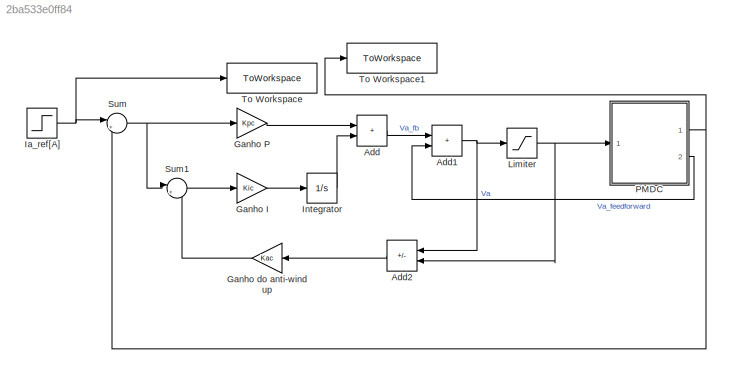
MODEL slx_2ba533e0ff84
KIND model
CONFIG AbsTol = auto
CONFIG EnableMultiTasking = off
CONFIG FixedStep = 1e-5
CONFIG MaxStep = auto
CONFIG MinStep = auto
CONFIG RelTol = 1e-3
CONFIG SampleTimeConstraint = Unconstrained
CONFIG SolverName = ode4
CONFIG StartTime = 0.0
CONFIG StopTime = 0.012
BLOCK [Sum] Add
  IconShape = rectangular
  Ports = [2, 1]
BLOCK [Sum] Add1
  IconShape = rectangular
  Ports = [2, 1]
BLOCK [Sum] Add2
  IconShape = rectangular
  Inputs = +-
  NameLocation = top
  Ports = [2, 1]
BLOCK [Gain] Ganho I
  Gain = Kic
BLOCK [Gain] Ganho P
  Gain = Kpc
BLOCK [Gain] Ganho do anti-wind up
  Gain = Kac
  NameLocation = top
BLOCK [Step] Ia_ref[A]
  After = 20
  SampleTime = 0
  Time = 0.01
BLOCK [Integrator] Integrator
  Ports = [1, 1]
BLOCK [Saturate] Limiter
  LowerLimit = -Va_rated
  UpperLimit = Va_rated
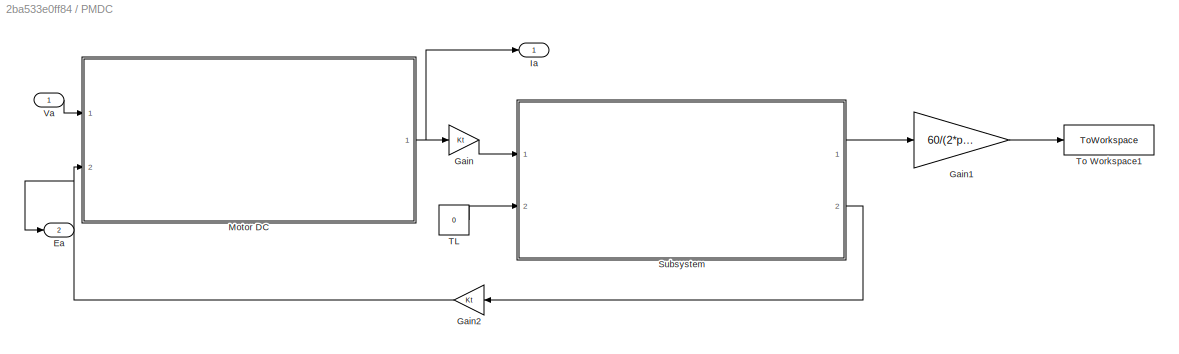
BLOCK [SubSystem] PMDC
  Ports = [1, 2]
  RequestExecContextInheritance = off
BLOCK [Outport] PMDC/Ea
  IconDisplay = Signal name
  Port = 2
BLOCK [Gain] PMDC/Gain
  Gain = Kt
BLOCK [Gain] PMDC/Gain1
  Gain = 60/(2*pi)
BLOCK [Gain] PMDC/Gain2
  Gain = Kt
  NameLocation = top
BLOCK [Outport] PMDC/Ia
  IconDisplay = Signal name
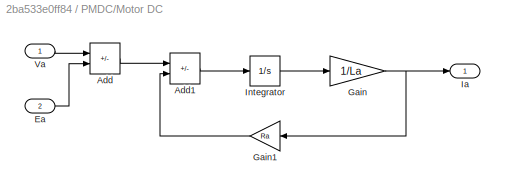
BLOCK [SubSystem] PMDC/Motor DC
  Ports = [2, 1]
  RequestExecContextInheritance = off
BLOCK [Sum] PMDC/Motor DC/Add
  IconShape = rectangular
  Inputs = +-
  Ports = [2, 1]
BLOCK [Sum] PMDC/Motor DC/Add1
  IconShape = rectangular
  Inputs = +-
  Ports = [2, 1]
BLOCK [Inport] PMDC/Motor DC/Ea
  Port = 2
BLOCK [Gain] PMDC/Motor DC/Gain
  Gain = 1/La
BLOCK [Gain] PMDC/Motor DC/Gain1
  Gain = Ra
  NameLocation = top
BLOCK [Outport] PMDC/Motor DC/Ia
BLOCK [Integrator] PMDC/Motor DC/Integrator
  Ports = [1, 1]
BLOCK [Inport] PMDC/Motor DC/Va
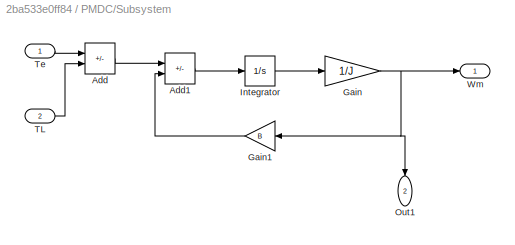
BLOCK [SubSystem] PMDC/Subsystem
  Ports = [2, 2]
  RequestExecContextInheritance = off
BLOCK [Sum] PMDC/Subsystem/Add
  IconShape = rectangular
  Inputs = +-
  Ports = [2, 1]
BLOCK [Sum] PMDC/Subsystem/Add1
  IconShape = rectangular
  Inputs = +-
  Ports = [2, 1]
BLOCK [Gain] PMDC/Subsystem/Gain
  Gain = 1/J
BLOCK [Gain] PMDC/Subsystem/Gain1
  Gain = B
  NameLocation = top
BLOCK [Integrator] PMDC/Subsystem/Integrator
  Ports = [1, 1]
BLOCK [Outport] PMDC/Subsystem/Out1
  NameLocation = left
  Port = 2
BLOCK [Inport] PMDC/Subsystem/TL
  Port = 2
BLOCK [Inport] PMDC/Subsystem/Te
BLOCK [Outport] PMDC/Subsystem/Wm
BLOCK [Constant] PMDC/TL
  Value = 0
BLOCK [ToWorkspace] PMDC/To Workspace1
  FixptAsFi = on
  MaxDataPoints = inf
  Ports = [1]
  SampleTime = -1
  SaveFormat = Timeseries
  VariableName = Wm_rpm
BLOCK [Inport] PMDC/Va
BLOCK [Sum] Sum
  Inputs = |+-
  Ports = [2, 1]
BLOCK [Sum] Sum1
  Inputs = |+-
  Ports = [2, 1]
BLOCK [ToWorkspace] To Workspace
  FixptAsFi = on
  MaxDataPoints = inf
  Ports = [1]
  SampleTime = -1
  SaveFormat = Timeseries
  VariableName = Ia_ref
BLOCK [ToWorkspace] To Workspace1
  FixptAsFi = on
  MaxDataPoints = inf
  Ports = [1]
  SampleTime = -1
  SaveFormat = Timeseries
  VariableName = Ia
NET Add1:1 -> Add2:1, Limiter:1
LINE Add2:1 -> Ganho do anti-wind up:1
LINE Add:1 -> Add1:1
LINE Ganho I:1 -> Integrator:1
LINE Ganho P:1 -> Add:1
LINE Ganho do anti-wind up:1 -> Sum1:2
NET Ia_ref[A]:1 -> Sum:1, To Workspace:1
LINE Integrator:1 -> Add:2
NET Limiter:1 -> Add2:2, PMDC:1
LINE PMDC/Gain1:1 -> PMDC/To Workspace1:1
NET PMDC/Gain2:1 -> PMDC/Ea:1, PMDC/Motor DC:2
LINE PMDC/Gain:1 -> PMDC/Subsystem:1
LINE PMDC/Motor DC/Add1:1 -> PMDC/Motor DC/Integrator:1
LINE PMDC/Motor DC/Add:1 -> PMDC/Motor DC/Add1:1
LINE PMDC/Motor DC/Ea:1 -> PMDC/Motor DC/Add:2
LINE PMDC/Motor DC/Gain1:1 -> PMDC/Motor DC/Add1:2
NET PMDC/Motor DC/Gain:1 -> PMDC/Motor DC/Gain1:1, PMDC/Motor DC/Ia:1
LINE PMDC/Motor DC/Integrator:1 -> PMDC/Motor DC/Gain:1
LINE PMDC/Motor DC/Va:1 -> PMDC/Motor DC/Add:1
NET PMDC/Motor DC:1 -> PMDC/Gain:1, PMDC/Ia:1
LINE PMDC/Subsystem/Add1:1 -> PMDC/Subsystem/Integrator:1
LINE PMDC/Subsystem/Add:1 -> PMDC/Subsystem/Add1:1
LINE PMDC/Subsystem/Gain1:1 -> PMDC/Subsystem/Add1:2
NET PMDC/Subsystem/Gain:1 -> PMDC/Subsystem/Gain1:1, PMDC/Subsystem/Out1:1, PMDC/Subsystem/Wm:1
LINE PMDC/Subsystem/Integrator:1 -> PMDC/Subsystem/Gain:1
LINE PMDC/Subsystem/TL:1 -> PMDC/Subsystem/Add:2
LINE PMDC/Subsystem/Te:1 -> PMDC/Subsystem/Add:1
LINE PMDC/Subsystem:1 -> PMDC/Gain1:1
LINE PMDC/Subsystem:2 -> PMDC/Gain2:1
LINE PMDC/TL:1 -> PMDC/Subsystem:2
LINE PMDC/Va:1 -> PMDC/Motor DC:1
NET PMDC:1 -> Sum:2, To Workspace1:1
LINE PMDC:2 -> Add1:2
LINE Sum1:1 -> Ganho I:1
NET Sum:1 -> Ganho P:1, Sum1:1
note: NET lines group one-source signal fan-out (src -> all destinations, sorted); 1:1 wires keep LINE
